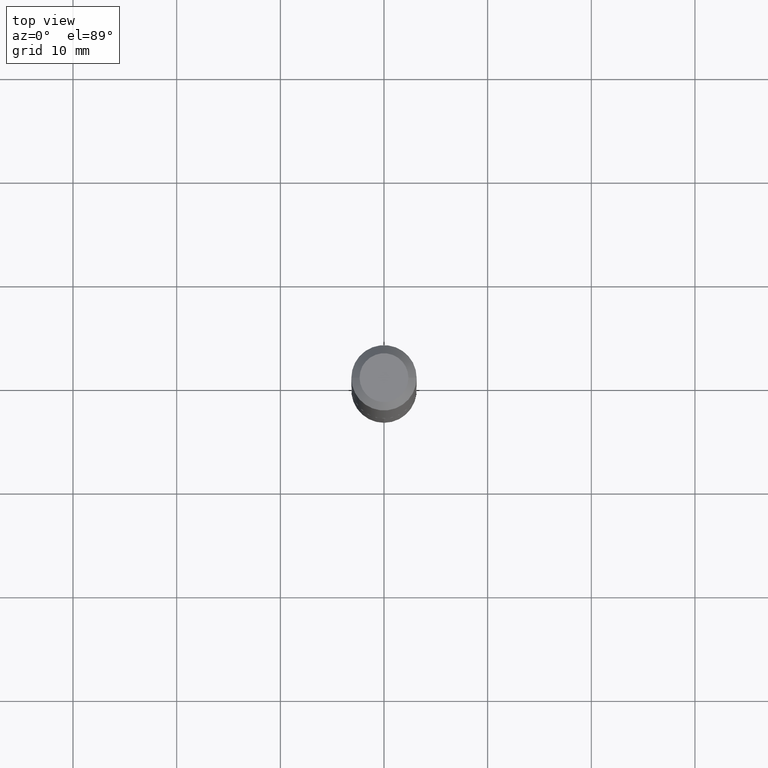
[diagram: clean part render]
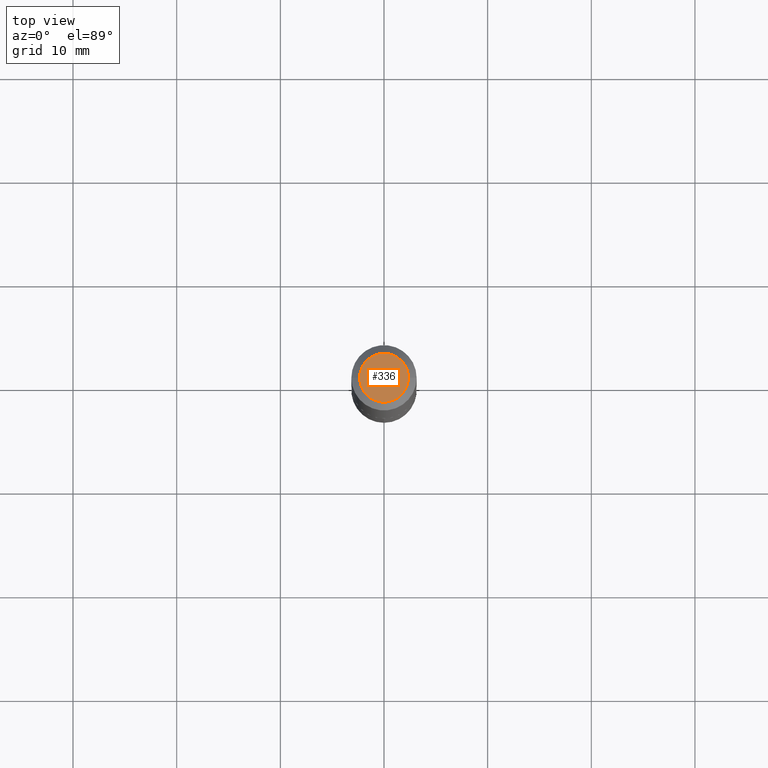
[diagram: same view with one face highlighted and labeled with its STEP entity id]
A machine part, top view. The second image highlights one B-rep face of the part: STEP entity #336.
In plain terms, the highlighted planar face has unit normal (0, -0, -1).
Its self-contained STEP definition (entity closure, byte-faithful):
#8 = FACE_OUTER_BOUND ( 'NONE', #333, .T. ) ;
#26 = ORIENTED_EDGE ( 'NONE', *, *, #221, .T. ) ;
#39 = VERTEX_POINT ( 'NONE', #48 ) ;
#42 = AXIS2_PLACEMENT_3D ( 'NONE', #278, #114, #250 ) ;
#48 = CARTESIAN_POINT ( 'NONE',  ( 0.09274999999999998523, -7.980608664279141043E-16, 2.388061258387889320E-19 ) ) ;
#55 = DIRECTION ( 'NONE',  ( 1.000000000000000000, -6.982962677686267499E-15, 4.876189173827808208E-29 ) ) ;
#94 = PLANE ( 'NONE',  #174 ) ;
#112 = VERTEX_POINT ( 'NONE', #296 ) ;
#113 = DIRECTION ( 'NONE',  ( -2.445468806185136597E-29, 3.491481338843145583E-15, 1.000000000000000000 ) ) ;
#114 = DIRECTION ( 'NONE',  ( -2.445468806185136597E-29, 3.491481338843145583E-15, 1.000000000000000000 ) ) ;
#123 = DIRECTION ( 'NONE',  ( 2.438088387897960049E-29, -3.491481338843145188E-15, -1.000000000000000000 ) ) ;
#171 = EDGE_CURVE ( 'NONE', #39, #112, #305, .T. ) ;
#174 = AXIS2_PLACEMENT_3D ( 'NONE', #315, #123, #223 ) ;
#200 = ORIENTED_EDGE ( 'NONE', *, *, #171, .T. ) ;
#221 = EDGE_CURVE ( 'NONE', #112, #39, #317, .T. ) ;
#223 = DIRECTION ( 'NONE',  ( -1.000000000000000000, 6.982962677686265922E-15, -4.876176775795935793E-29 ) ) ;
#250 = DIRECTION ( 'NONE',  ( 1.000000000000000000, -6.982962677686267499E-15, 4.876189173827808208E-29 ) ) ;
#278 = CARTESIAN_POINT ( 'NONE',  ( -5.839929314523198503E-48, 8.337871319499114970E-34, 2.388061258337343288E-19 ) ) ;
#296 = CARTESIAN_POINT ( 'NONE',  ( -0.09274999999999998523, 7.022241842748244624E-16, 2.388061258290143560E-19 ) ) ;
#299 = AXIS2_PLACEMENT_3D ( 'NONE', #365, #113, #55 ) ;
#305 = CIRCLE ( 'NONE', #299, 0.09274999999999998523 ) ;
#315 = CARTESIAN_POINT ( 'NONE',  ( -2.919964657261599251E-48, 4.168935659749557485E-34, 1.194030629168671644E-19 ) ) ;
#317 = CIRCLE ( 'NONE', #42, 0.09274999999999998523 ) ;
#333 = EDGE_LOOP ( 'NONE', ( #26, #200 ) ) ;
#336 = ADVANCED_FACE ( 'NONE', ( #8 ), #94, .F. ) ;
#365 = CARTESIAN_POINT ( 'NONE',  ( -5.839929314523198503E-48, 8.337871319499114970E-34, 2.388061258337343288E-19 ) ) ;